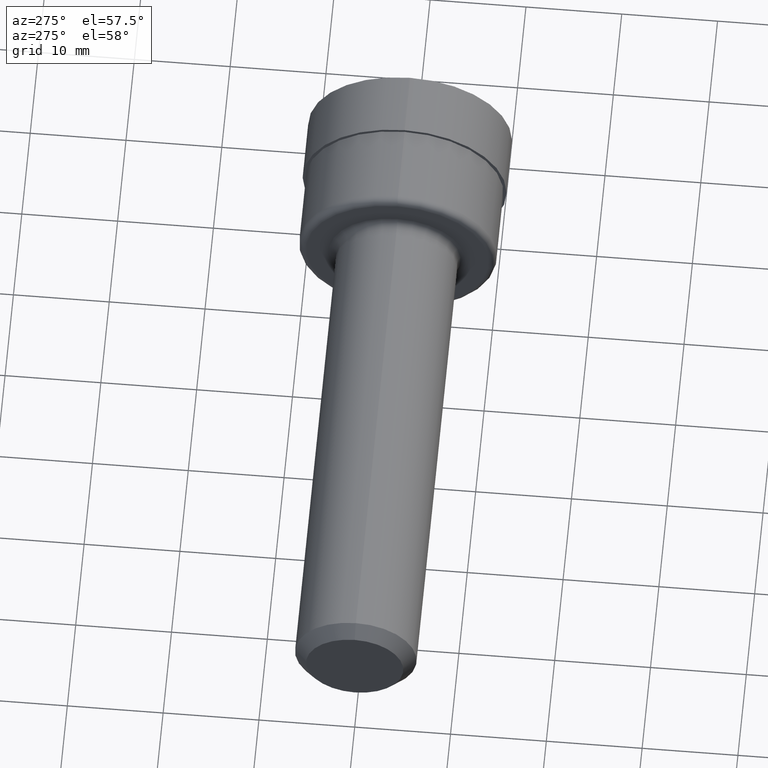
[diagram: clean part render]
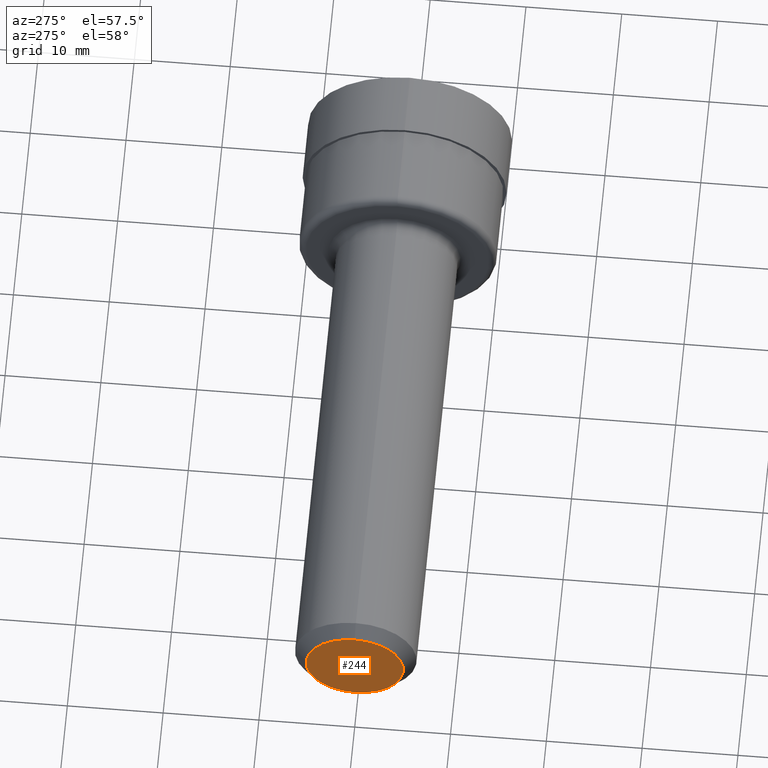
[diagram: same view with one face highlighted and labeled with its STEP entity id]
A machine part, auxiliary view. The second image highlights one B-rep face of the part: STEP entity #244.
In plain terms, the highlighted planar face has unit normal (1, 0, 0).
Its self-contained STEP definition (entity closure, byte-faithful):
#10 = EDGE_CURVE ( 'NONE', #480, #261, #238, .T. ) ;
#48 = DIRECTION ( 'NONE',  ( 0.000000000000000000, 0.000000000000000000, 1.000000000000000000 ) ) ;
#62 = CARTESIAN_POINT ( 'NONE',  ( 0.000000000000000000, 0.000000000000000000, -0.2000000000000001776 ) ) ;
#67 = PLANE ( 'NONE',  #76 ) ;
#76 = AXIS2_PLACEMENT_3D ( 'NONE', #523, #260, #152 ) ;
#129 = EDGE_CURVE ( 'NONE', #261, #480, #155, .T. ) ;
#152 = DIRECTION ( 'NONE',  ( 0.000000000000000000, 0.000000000000000000, -1.000000000000000000 ) ) ;
#155 = CIRCLE ( 'NONE', #458, 0.2000000000000001776 ) ;
#205 = CARTESIAN_POINT ( 'NONE',  ( 0.000000000000000000, 0.000000000000000000, 0.000000000000000000 ) ) ;
#238 = CIRCLE ( 'NONE', #606, 0.2000000000000001776 ) ;
#241 = EDGE_LOOP ( 'NONE', ( #336, #542 ) ) ;
#244 = ADVANCED_FACE ( 'NONE', ( #368 ), #67, .F. ) ;
#260 = DIRECTION ( 'NONE',  ( 1.000000000000000000, 0.000000000000000000, 0.000000000000000000 ) ) ;
#261 = VERTEX_POINT ( 'NONE', #62 ) ;
#329 = CARTESIAN_POINT ( 'NONE',  ( 0.000000000000000000, 2.755455298081545702E-17, 0.2000000000000001776 ) ) ;
#336 = ORIENTED_EDGE ( 'NONE', *, *, #129, .T. ) ;
#368 = FACE_OUTER_BOUND ( 'NONE', #241, .T. ) ;
#381 = CARTESIAN_POINT ( 'NONE',  ( 0.000000000000000000, 0.000000000000000000, 0.000000000000000000 ) ) ;
#435 = DIRECTION ( 'NONE',  ( -1.000000000000000000, -0.000000000000000000, -0.000000000000000000 ) ) ;
#458 = AXIS2_PLACEMENT_3D ( 'NONE', #205, #607, #48 ) ;
#480 = VERTEX_POINT ( 'NONE', #329 ) ;
#523 = CARTESIAN_POINT ( 'NONE',  ( 0.000000000000000000, 0.000000000000000000, 0.000000000000000000 ) ) ;
#542 = ORIENTED_EDGE ( 'NONE', *, *, #10, .T. ) ;
#606 = AXIS2_PLACEMENT_3D ( 'NONE', #381, #435, #632 ) ;
#607 = DIRECTION ( 'NONE',  ( -1.000000000000000000, -0.000000000000000000, -0.000000000000000000 ) ) ;
#632 = DIRECTION ( 'NONE',  ( 0.000000000000000000, 0.000000000000000000, 1.000000000000000000 ) ) ;